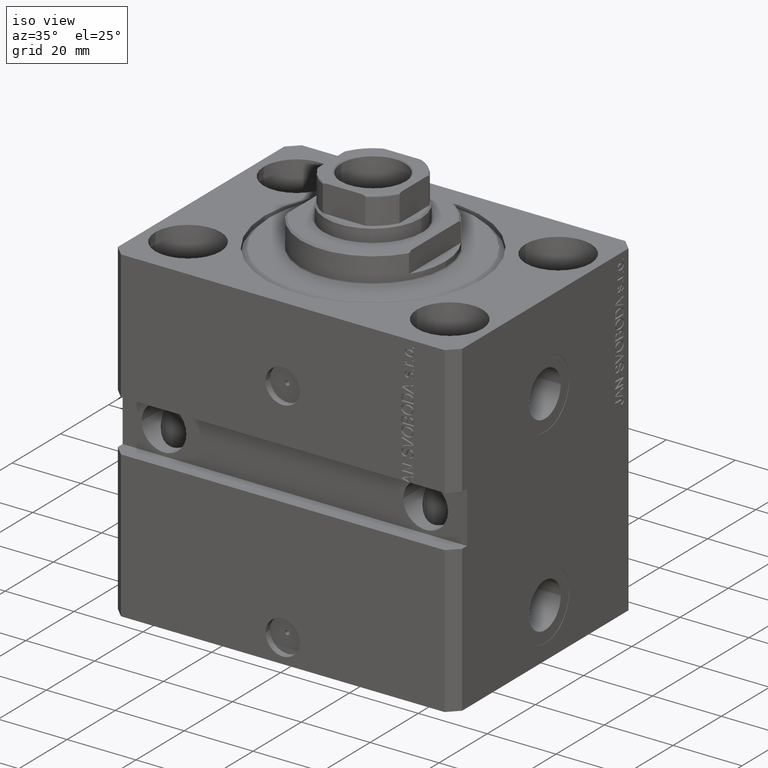
[diagram: clean part render]
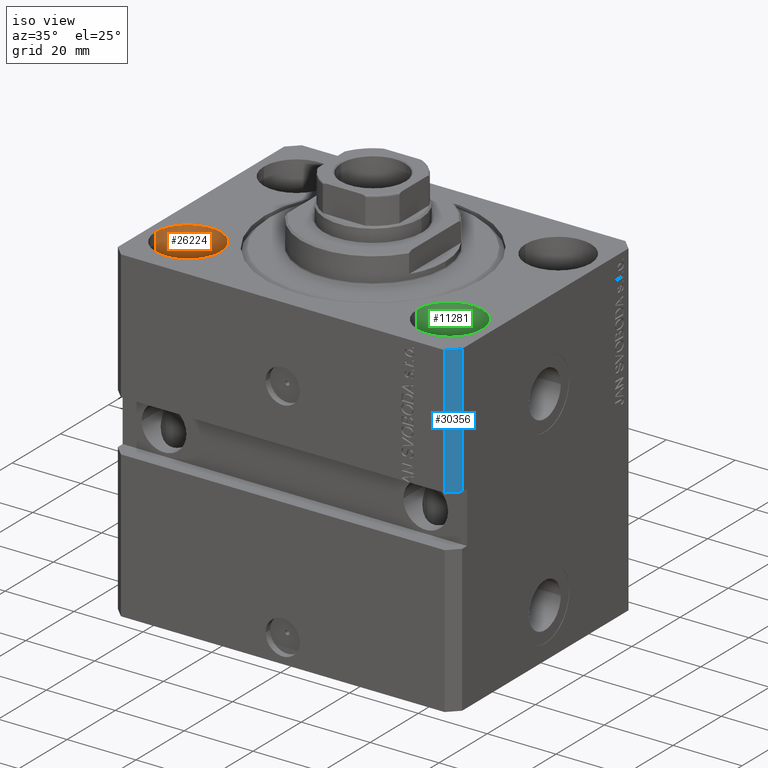
[diagram: same view with three faces highlighted in distinct colors, each labeled with its STEP entity id]
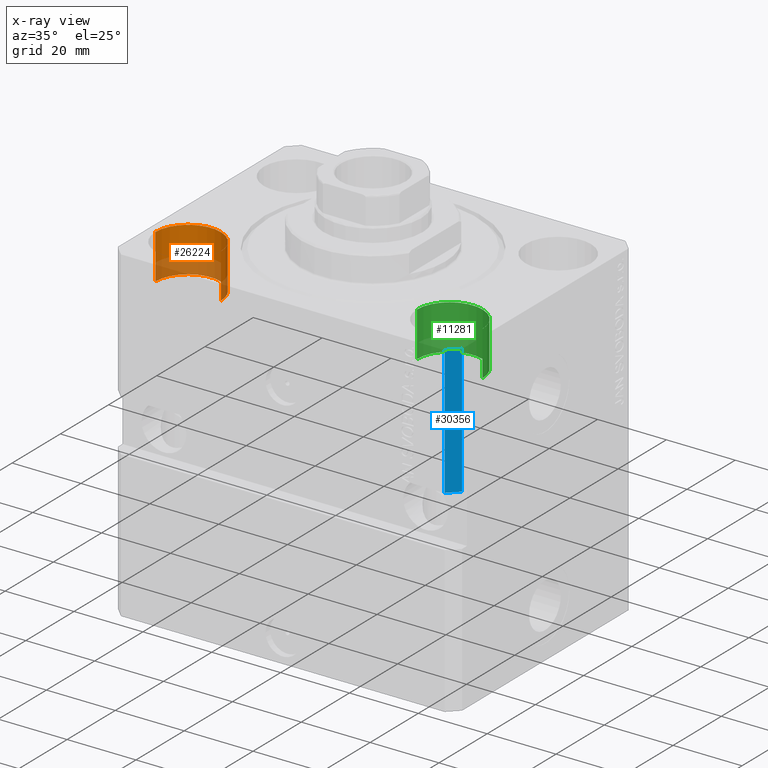
[diagram: x-ray of the same camera — body ghosted, the three highlighted faces saturated]
A machine part, iso view with three faces highlighted in distinct colors.
The next image is the same camera in x-ray (body ghosted, the three faces saturated) — at least one of them is partly hidden behind the body in this view.
Their STEP definitions:

[orange] entity #26224 — the highlighted cylindrical surface (partial cylindrical patch) has radius 9.5 mm, axis along (0, 0, 1).
#239 = CIRCLE ( 'NONE', #4862, 9.500000000000001776 ) ;
#305 = LINE ( 'NONE', #43466, #30853 ) ;
#1121 = DIRECTION ( 'NONE',  ( 1.000000000000000000, 0.000000000000000000, 0.000000000000000000 ) ) ;
#1852 = EDGE_LOOP ( 'NONE', ( #41904, #47147, #10168, #4367 ) ) ;
#4367 = ORIENTED_EDGE ( 'NONE', *, *, #4481, .T. ) ;
#4481 = EDGE_CURVE ( 'NONE', #21070, #17625, #239, .T. ) ;
#4733 = FACE_OUTER_BOUND ( 'NONE', #1852, .T. ) ;
#4862 = AXIS2_PLACEMENT_3D ( 'NONE', #15778, #15314, #30020 ) ;
#4948 = VECTOR ( 'NONE', #45444, 1000.000000000000000 ) ;
#8550 = CARTESIAN_POINT ( 'NONE',  ( -47.50000000000000711, -22.50000000000000000, -13.00000000000000000 ) ) ;
#8564 = EDGE_CURVE ( 'NONE', #39527, #17625, #12889, .T. ) ;
#10168 = ORIENTED_EDGE ( 'NONE', *, *, #29379, .T. ) ;
#10438 = DIRECTION ( 'NONE',  ( -0.000000000000000000, -0.000000000000000000, 1.000000000000000000 ) ) ;
#11640 = AXIS2_PLACEMENT_3D ( 'NONE', #26586, #22982, #19845 ) ;
#12889 = LINE ( 'NONE', #8550, #4948 ) ;
#15314 = DIRECTION ( 'NONE',  ( 0.000000000000000000, 0.000000000000000000, 1.000000000000000000 ) ) ;
#15778 = CARTESIAN_POINT ( 'NONE',  ( -38.00000000000000711, -22.50000000000000000, 0.000000000000000000 ) ) ;
#16329 = DIRECTION ( 'NONE',  ( -0.000000000000000000, -0.000000000000000000, 1.000000000000000000 ) ) ;
#17625 = VERTEX_POINT ( 'NONE', #47062 ) ;
#19845 = DIRECTION ( 'NONE',  ( 1.000000000000000000, 0.000000000000000000, 0.000000000000000000 ) ) ;
#21070 = VERTEX_POINT ( 'NONE', #45140 ) ;
#22982 = DIRECTION ( 'NONE',  ( 0.000000000000000000, 0.000000000000000000, 1.000000000000000000 ) ) ;
#23963 = CIRCLE ( 'NONE', #11640, 9.500000000000001776 ) ;
#26224 = ADVANCED_FACE ( 'NONE', ( #4733 ), #35104, .F. ) ;
#26586 = CARTESIAN_POINT ( 'NONE',  ( -38.00000000000000711, -22.50000000000000000, -13.00000000000000000 ) ) ;
#29379 = EDGE_CURVE ( 'NONE', #32214, #21070, #305, .T. ) ;
#30020 = DIRECTION ( 'NONE',  ( 1.000000000000000000, 0.000000000000000000, 0.000000000000000000 ) ) ;
#30336 = EDGE_CURVE ( 'NONE', #32214, #39527, #23963, .T. ) ;
#30853 = VECTOR ( 'NONE', #10438, 1000.000000000000000 ) ;
#32214 = VERTEX_POINT ( 'NONE', #37552 ) ;
#35104 = CYLINDRICAL_SURFACE ( 'NONE', #45467, 9.500000000000001776 ) ;
#35451 = CARTESIAN_POINT ( 'NONE',  ( -47.50000000000000711, -22.50000000000000000, -13.00000000000000000 ) ) ;
#37552 = CARTESIAN_POINT ( 'NONE',  ( -28.50000000000000355, -22.50000000000000000, -13.00000000000000000 ) ) ;
#38026 = CARTESIAN_POINT ( 'NONE',  ( -38.00000000000000711, -22.50000000000000000, -13.00000000000000000 ) ) ;
#39527 = VERTEX_POINT ( 'NONE', #35451 ) ;
#41904 = ORIENTED_EDGE ( 'NONE', *, *, #8564, .F. ) ;
#43466 = CARTESIAN_POINT ( 'NONE',  ( -28.50000000000000355, -22.50000000000000000, -13.00000000000000000 ) ) ;
#45140 = CARTESIAN_POINT ( 'NONE',  ( -28.50000000000000355, -22.50000000000000000, 0.000000000000000000 ) ) ;
#45444 = DIRECTION ( 'NONE',  ( -0.000000000000000000, -0.000000000000000000, 1.000000000000000000 ) ) ;
#45467 = AXIS2_PLACEMENT_3D ( 'NONE', #38026, #16329, #1121 ) ;
#47062 = CARTESIAN_POINT ( 'NONE',  ( -47.50000000000000711, -22.50000000000000000, 0.000000000000000000 ) ) ;
#47147 = ORIENTED_EDGE ( 'NONE', *, *, #30336, .F. ) ;

[blue] entity #30356 — the highlighted planar face has unit normal (0.7071, -0.7071, 0).
#289 = EDGE_CURVE ( 'NONE', #10320, #453, #30195, .T. ) ;
#453 = VERTEX_POINT ( 'NONE', #32544 ) ;
#4458 = VERTEX_POINT ( 'NONE', #11913 ) ;
#6293 = DIRECTION ( 'NONE',  ( 0.7071067811865466846, -0.7071067811865484609, 0.000000000000000000 ) ) ;
#8219 = CARTESIAN_POINT ( 'NONE',  ( 47.00000000000000000, -37.50000000000000711, 0.000000000000000000 ) ) ;
#9316 = DIRECTION ( 'NONE',  ( 0.000000000000000000, 0.000000000000000000, 1.000000000000000000 ) ) ;
#10320 = VERTEX_POINT ( 'NONE', #31143 ) ;
#10383 = DIRECTION ( 'NONE',  ( 0.000000000000000000, 0.000000000000000000, 1.000000000000000000 ) ) ;
#11136 = CARTESIAN_POINT ( 'NONE',  ( 47.00000000000000000, -37.49999999999999289, -37.49999999999997868 ) ) ;
#11218 = EDGE_CURVE ( 'NONE', #4458, #18437, #45661, .T. ) ;
#11779 = VECTOR ( 'NONE', #44879, 1000.000000000000000 ) ;
#11820 = EDGE_CURVE ( 'NONE', #4458, #453, #34654, .T. ) ;
#11913 = CARTESIAN_POINT ( 'NONE',  ( 49.99999999999999289, -34.50000000000001421, -37.49999999999997868 ) ) ;
#14024 = PLANE ( 'NONE',  #33983 ) ;
#15331 = ORIENTED_EDGE ( 'NONE', *, *, #11218, .F. ) ;
#17634 = CARTESIAN_POINT ( 'NONE',  ( 47.00000000000000000, -37.50000000000000711, -95.00000000000000000 ) ) ;
#18437 = VERTEX_POINT ( 'NONE', #11136 ) ;
#19987 = VECTOR ( 'NONE', #10383, 1000.000000000000000 ) ;
#20195 = CARTESIAN_POINT ( 'NONE',  ( 50.00000000000000000, -34.50000000000000711, -95.00000000000000000 ) ) ;
#20513 = ORIENTED_EDGE ( 'NONE', *, *, #23637, .F. ) ;
#23637 = EDGE_CURVE ( 'NONE', #18437, #10320, #43411, .T. ) ;
#25846 = EDGE_LOOP ( 'NONE', ( #15331, #47652, #35056, #20513 ) ) ;
#28245 = CARTESIAN_POINT ( 'NONE',  ( 47.00000000000000000, -37.50000000000000711, -95.00000000000000000 ) ) ;
#30195 = LINE ( 'NONE', #8219, #11779 ) ;
#30356 = ADVANCED_FACE ( 'NONE', ( #42700 ), #14024, .T. ) ;
#31143 = CARTESIAN_POINT ( 'NONE',  ( 47.00000000000000000, -37.50000000000000711, 0.000000000000000000 ) ) ;
#32544 = CARTESIAN_POINT ( 'NONE',  ( 50.00000000000000000, -34.50000000000000711, 0.000000000000000000 ) ) ;
#33983 = AXIS2_PLACEMENT_3D ( 'NONE', #28245, #6293, #35235 ) ;
#34327 = VECTOR ( 'NONE', #9316, 1000.000000000000000 ) ;
#34654 = LINE ( 'NONE', #20195, #34327 ) ;
#34818 = DIRECTION ( 'NONE',  ( -0.7071067811865483499, -0.7071067811865465735, -1.962615573354721362E-16 ) ) ;
#35056 = ORIENTED_EDGE ( 'NONE', *, *, #289, .F. ) ;
#35235 = DIRECTION ( 'NONE',  ( 0.7071067811865483499, 0.7071067811865465735, 0.000000000000000000 ) ) ;
#41819 = CARTESIAN_POINT ( 'NONE',  ( 46.99999999999999289, -37.50000000000001421, -37.49999999999997868 ) ) ;
#42700 = FACE_OUTER_BOUND ( 'NONE', #25846, .T. ) ;
#42776 = VECTOR ( 'NONE', #34818, 1000.000000000000114 ) ;
#43411 = LINE ( 'NONE', #17634, #19987 ) ;
#44879 = DIRECTION ( 'NONE',  ( 0.7071067811865483499, 0.7071067811865466846, 0.000000000000000000 ) ) ;
#45661 = LINE ( 'NONE', #41819, #42776 ) ;
#47652 = ORIENTED_EDGE ( 'NONE', *, *, #11820, .T. ) ;

[green] entity #11281 — the highlighted cylindrical surface (partial cylindrical patch) has radius 9.5 mm, axis along (0, 0, 1).
#347 = EDGE_CURVE ( 'NONE', #16130, #43711, #44130, .T. ) ;
#3464 = LINE ( 'NONE', #44706, #19064 ) ;
#4482 = VECTOR ( 'NONE', #4898, 1000.000000000000000 ) ;
#4898 = DIRECTION ( 'NONE',  ( -0.000000000000000000, -0.000000000000000000, 1.000000000000000000 ) ) ;
#6356 = AXIS2_PLACEMENT_3D ( 'NONE', #37192, #13272, #42910 ) ;
#7814 = DIRECTION ( 'NONE',  ( -0.000000000000000000, -0.000000000000000000, 1.000000000000000000 ) ) ;
#9479 = CYLINDRICAL_SURFACE ( 'NONE', #21258, 9.500000000000001776 ) ;
#10361 = DIRECTION ( 'NONE',  ( 1.000000000000000000, 0.000000000000000000, 0.000000000000000000 ) ) ;
#11281 = ADVANCED_FACE ( 'NONE', ( #45887 ), #9479, .F. ) ;
#11294 = VERTEX_POINT ( 'NONE', #24687 ) ;
#11916 = CARTESIAN_POINT ( 'NONE',  ( 28.50000000000000355, -22.50000000000000000, -13.00000000000000000 ) ) ;
#13272 = DIRECTION ( 'NONE',  ( 0.000000000000000000, 0.000000000000000000, 1.000000000000000000 ) ) ;
#16130 = VERTEX_POINT ( 'NONE', #40916 ) ;
#16979 = VERTEX_POINT ( 'NONE', #44111 ) ;
#17386 = EDGE_CURVE ( 'NONE', #16130, #11294, #3464, .T. ) ;
#19064 = VECTOR ( 'NONE', #7814, 1000.000000000000000 ) ;
#20361 = CARTESIAN_POINT ( 'NONE',  ( 38.00000000000000711, -22.50000000000000000, -13.00000000000000000 ) ) ;
#21258 = AXIS2_PLACEMENT_3D ( 'NONE', #20361, #31916, #24206 ) ;
#24206 = DIRECTION ( 'NONE',  ( 1.000000000000000000, 0.000000000000000000, 0.000000000000000000 ) ) ;
#24687 = CARTESIAN_POINT ( 'NONE',  ( 47.50000000000000711, -22.50000000000000000, 0.000000000000000000 ) ) ;
#27346 = ORIENTED_EDGE ( 'NONE', *, *, #17386, .T. ) ;
#28217 = DIRECTION ( 'NONE',  ( 0.000000000000000000, 0.000000000000000000, 1.000000000000000000 ) ) ;
#28753 = AXIS2_PLACEMENT_3D ( 'NONE', #39545, #28217, #10361 ) ;
#30488 = LINE ( 'NONE', #11916, #4482 ) ;
#31490 = ORIENTED_EDGE ( 'NONE', *, *, #34250, .T. ) ;
#31916 = DIRECTION ( 'NONE',  ( -0.000000000000000000, -0.000000000000000000, 1.000000000000000000 ) ) ;
#34250 = EDGE_CURVE ( 'NONE', #11294, #16979, #47222, .T. ) ;
#36572 = ORIENTED_EDGE ( 'NONE', *, *, #41242, .F. ) ;
#37192 = CARTESIAN_POINT ( 'NONE',  ( 38.00000000000000711, -22.50000000000000000, -13.00000000000000000 ) ) ;
#39545 = CARTESIAN_POINT ( 'NONE',  ( 38.00000000000000711, -22.50000000000000000, 0.000000000000000000 ) ) ;
#40916 = CARTESIAN_POINT ( 'NONE',  ( 47.50000000000000711, -22.50000000000000000, -13.00000000000000000 ) ) ;
#41242 = EDGE_CURVE ( 'NONE', #43711, #16979, #30488, .T. ) ;
#42677 = ORIENTED_EDGE ( 'NONE', *, *, #347, .F. ) ;
#42910 = DIRECTION ( 'NONE',  ( 1.000000000000000000, 0.000000000000000000, 0.000000000000000000 ) ) ;
#43711 = VERTEX_POINT ( 'NONE', #46792 ) ;
#44111 = CARTESIAN_POINT ( 'NONE',  ( 28.50000000000000355, -22.50000000000000000, 0.000000000000000000 ) ) ;
#44130 = CIRCLE ( 'NONE', #6356, 9.500000000000001776 ) ;
#44706 = CARTESIAN_POINT ( 'NONE',  ( 47.50000000000000711, -22.50000000000000000, -13.00000000000000000 ) ) ;
#45468 = EDGE_LOOP ( 'NONE', ( #36572, #42677, #27346, #31490 ) ) ;
#45887 = FACE_OUTER_BOUND ( 'NONE', #45468, .T. ) ;
#46792 = CARTESIAN_POINT ( 'NONE',  ( 28.50000000000000355, -22.50000000000000000, -13.00000000000000000 ) ) ;
#47222 = CIRCLE ( 'NONE', #28753, 9.500000000000001776 ) ;